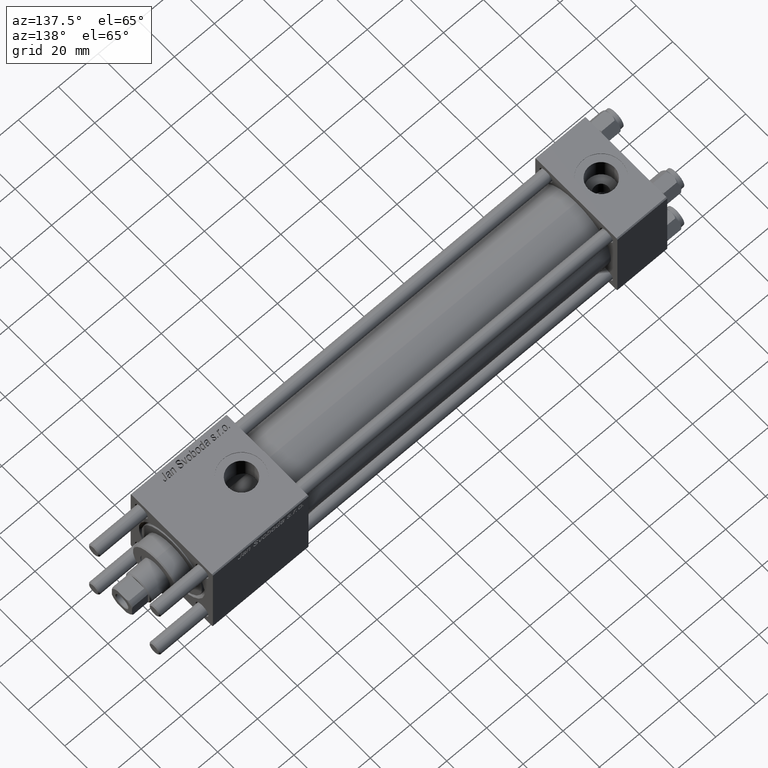
[diagram: clean part render]
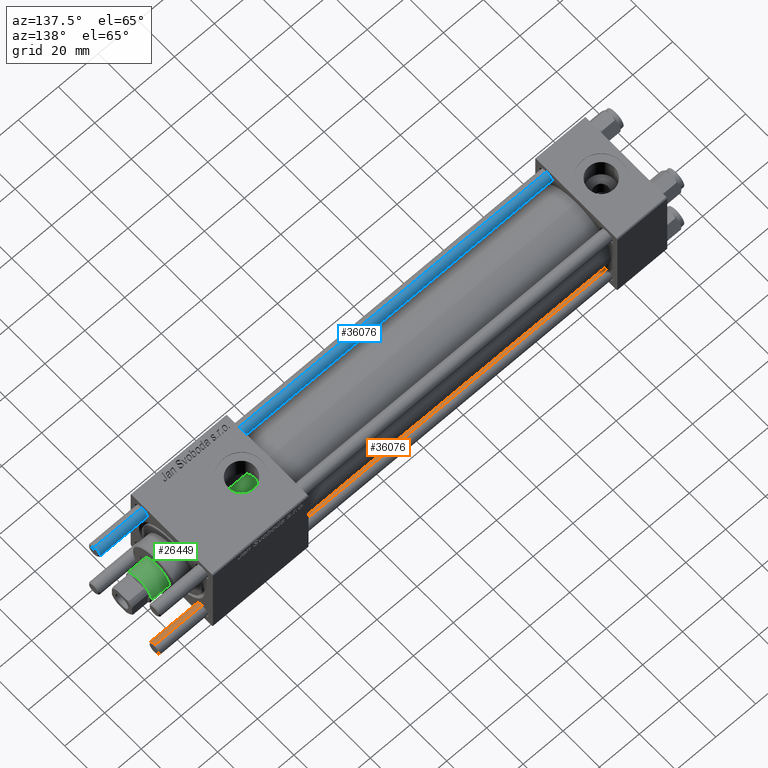
[diagram: same view with three faces highlighted in distinct colors, each labeled with its STEP entity id]
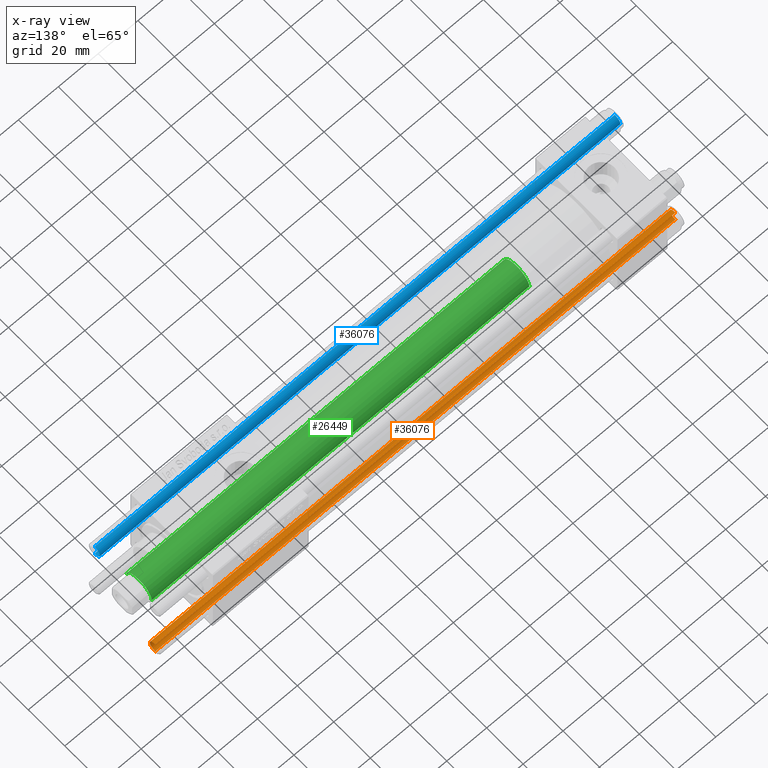
[diagram: x-ray of the same camera — body ghosted, the three highlighted faces saturated]
A machine part, auxiliary view with three faces highlighted in distinct colors.
The next image is the same camera in x-ray (body ghosted, the three faces saturated) — at least one of them is partly hidden behind the body in this view.
Their STEP definitions:

[orange] entity #36076 — the highlighted cylindrical surface (edge-blend (fillet) strip) has radius 3 mm, axis along (-1, -0, 0).
#2593 = CARTESIAN_POINT ( 'NONE',  ( 0.000000000000000000, 0.000000000000000000, 261.5000000000000568 ) ) ;
#3306 = DIRECTION ( 'NONE',  ( -1.000000000000000000, 0.000000000000000000, 0.000000000000000000 ) ) ;
#4651 = DIRECTION ( 'NONE',  ( -0.000000000000000000, -0.000000000000000000, 1.000000000000000000 ) ) ;
#9441 = AXIS2_PLACEMENT_3D ( 'NONE', #26488, #4651, #39734 ) ;
#9582 = ORIENTED_EDGE ( 'NONE', *, *, #49860, .T. ) ;
#11949 = CARTESIAN_POINT ( 'NONE',  ( 0.000000000000000000, 0.000000000000000000, 262.0000000000000000 ) ) ;
#13748 = CIRCLE ( 'NONE', #45867, 3.000000000000000444 ) ;
#14085 = EDGE_CURVE ( 'NONE', #27907, #49711, #55422, .T. ) ;
#15739 = DIRECTION ( 'NONE',  ( -0.000000000000000000, -0.000000000000000000, -1.000000000000000000 ) ) ;
#16717 = VERTEX_POINT ( 'NONE', #39714 ) ;
#17708 = ORIENTED_EDGE ( 'NONE', *, *, #34718, .F. ) ;
#19204 = CARTESIAN_POINT ( 'NONE',  ( -3.000000000000000444, 0.000000000000000000, 262.0000000000000000 ) ) ;
#20282 = CYLINDRICAL_SURFACE ( 'NONE', #23715, 3.000000000000000444 ) ;
#23715 = AXIS2_PLACEMENT_3D ( 'NONE', #11949, #50701, #3306 ) ;
#24620 = VECTOR ( 'NONE', #15739, 1000.000000000000000 ) ;
#26488 = CARTESIAN_POINT ( 'NONE',  ( 0.000000000000000000, 0.000000000000000000, 0.5000000000000004441 ) ) ;
#27907 = VERTEX_POINT ( 'NONE', #52998 ) ;
#29952 = CARTESIAN_POINT ( 'NONE',  ( 3.000000000000000444, 3.673940397442060361E-16, 0.5000000000000004441 ) ) ;
#33363 = DIRECTION ( 'NONE',  ( 0.000000000000000000, 0.000000000000000000, -1.000000000000000000 ) ) ;
#34718 = EDGE_CURVE ( 'NONE', #43150, #49711, #39211, .T. ) ;
#34890 = DIRECTION ( 'NONE',  ( -0.000000000000000000, -0.000000000000000000, -1.000000000000000000 ) ) ;
#35611 = VECTOR ( 'NONE', #34890, 1000.000000000000000 ) ;
#35723 = CARTESIAN_POINT ( 'NONE',  ( 3.000000000000000444, 3.673940397442060361E-16, 261.5000000000000568 ) ) ;
#36076 = ADVANCED_FACE ( 'NONE', ( #38382 ), #20282, .T. ) ;
#37306 = LINE ( 'NONE', #19204, #24620 ) ;
#38382 = FACE_OUTER_BOUND ( 'NONE', #53929, .T. ) ;
#38650 = ORIENTED_EDGE ( 'NONE', *, *, #44364, .T. ) ;
#39211 = LINE ( 'NONE', #56702, #35611 ) ;
#39714 = CARTESIAN_POINT ( 'NONE',  ( -3.000000000000000444, 0.000000000000000000, 261.5000000000000568 ) ) ;
#39734 = DIRECTION ( 'NONE',  ( 1.000000000000000000, 0.000000000000000000, 0.000000000000000000 ) ) ;
#41417 = DIRECTION ( 'NONE',  ( 1.000000000000000000, 0.000000000000000000, 0.000000000000000000 ) ) ;
#41480 = ORIENTED_EDGE ( 'NONE', *, *, #14085, .T. ) ;
#43150 = VERTEX_POINT ( 'NONE', #35723 ) ;
#44364 = EDGE_CURVE ( 'NONE', #16717, #27907, #37306, .T. ) ;
#45867 = AXIS2_PLACEMENT_3D ( 'NONE', #2593, #33363, #41417 ) ;
#49711 = VERTEX_POINT ( 'NONE', #29952 ) ;
#49860 = EDGE_CURVE ( 'NONE', #43150, #16717, #13748, .T. ) ;
#50701 = DIRECTION ( 'NONE',  ( -0.000000000000000000, -0.000000000000000000, -1.000000000000000000 ) ) ;
#52998 = CARTESIAN_POINT ( 'NONE',  ( -3.000000000000000444, 0.000000000000000000, 0.5000000000000004441 ) ) ;
#53929 = EDGE_LOOP ( 'NONE', ( #17708, #9582, #38650, #41480 ) ) ;
#55422 = CIRCLE ( 'NONE', #9441, 3.000000000000000444 ) ;
#56702 = CARTESIAN_POINT ( 'NONE',  ( 3.000000000000000444, 3.673940397442060361E-16, 262.0000000000000000 ) ) ;

[blue] entity #36076 — the highlighted cylindrical surface (edge-blend (fillet) strip) has radius 3 mm, axis along (-1, 0, -0).
#2593 = CARTESIAN_POINT ( 'NONE',  ( 0.000000000000000000, 0.000000000000000000, 261.5000000000000568 ) ) ;
#3306 = DIRECTION ( 'NONE',  ( -1.000000000000000000, 0.000000000000000000, 0.000000000000000000 ) ) ;
#4651 = DIRECTION ( 'NONE',  ( -0.000000000000000000, -0.000000000000000000, 1.000000000000000000 ) ) ;
#9441 = AXIS2_PLACEMENT_3D ( 'NONE', #26488, #4651, #39734 ) ;
#9582 = ORIENTED_EDGE ( 'NONE', *, *, #49860, .T. ) ;
#11949 = CARTESIAN_POINT ( 'NONE',  ( 0.000000000000000000, 0.000000000000000000, 262.0000000000000000 ) ) ;
#13748 = CIRCLE ( 'NONE', #45867, 3.000000000000000444 ) ;
#14085 = EDGE_CURVE ( 'NONE', #27907, #49711, #55422, .T. ) ;
#15739 = DIRECTION ( 'NONE',  ( -0.000000000000000000, -0.000000000000000000, -1.000000000000000000 ) ) ;
#16717 = VERTEX_POINT ( 'NONE', #39714 ) ;
#17708 = ORIENTED_EDGE ( 'NONE', *, *, #34718, .F. ) ;
#19204 = CARTESIAN_POINT ( 'NONE',  ( -3.000000000000000444, 0.000000000000000000, 262.0000000000000000 ) ) ;
#20282 = CYLINDRICAL_SURFACE ( 'NONE', #23715, 3.000000000000000444 ) ;
#23715 = AXIS2_PLACEMENT_3D ( 'NONE', #11949, #50701, #3306 ) ;
#24620 = VECTOR ( 'NONE', #15739, 1000.000000000000000 ) ;
#26488 = CARTESIAN_POINT ( 'NONE',  ( 0.000000000000000000, 0.000000000000000000, 0.5000000000000004441 ) ) ;
#27907 = VERTEX_POINT ( 'NONE', #52998 ) ;
#29952 = CARTESIAN_POINT ( 'NONE',  ( 3.000000000000000444, 3.673940397442060361E-16, 0.5000000000000004441 ) ) ;
#33363 = DIRECTION ( 'NONE',  ( 0.000000000000000000, 0.000000000000000000, -1.000000000000000000 ) ) ;
#34718 = EDGE_CURVE ( 'NONE', #43150, #49711, #39211, .T. ) ;
#34890 = DIRECTION ( 'NONE',  ( -0.000000000000000000, -0.000000000000000000, -1.000000000000000000 ) ) ;
#35611 = VECTOR ( 'NONE', #34890, 1000.000000000000000 ) ;
#35723 = CARTESIAN_POINT ( 'NONE',  ( 3.000000000000000444, 3.673940397442060361E-16, 261.5000000000000568 ) ) ;
#36076 = ADVANCED_FACE ( 'NONE', ( #38382 ), #20282, .T. ) ;
#37306 = LINE ( 'NONE', #19204, #24620 ) ;
#38382 = FACE_OUTER_BOUND ( 'NONE', #53929, .T. ) ;
#38650 = ORIENTED_EDGE ( 'NONE', *, *, #44364, .T. ) ;
#39211 = LINE ( 'NONE', #56702, #35611 ) ;
#39714 = CARTESIAN_POINT ( 'NONE',  ( -3.000000000000000444, 0.000000000000000000, 261.5000000000000568 ) ) ;
#39734 = DIRECTION ( 'NONE',  ( 1.000000000000000000, 0.000000000000000000, 0.000000000000000000 ) ) ;
#41417 = DIRECTION ( 'NONE',  ( 1.000000000000000000, 0.000000000000000000, 0.000000000000000000 ) ) ;
#41480 = ORIENTED_EDGE ( 'NONE', *, *, #14085, .T. ) ;
#43150 = VERTEX_POINT ( 'NONE', #35723 ) ;
#44364 = EDGE_CURVE ( 'NONE', #16717, #27907, #37306, .T. ) ;
#45867 = AXIS2_PLACEMENT_3D ( 'NONE', #2593, #33363, #41417 ) ;
#49711 = VERTEX_POINT ( 'NONE', #29952 ) ;
#49860 = EDGE_CURVE ( 'NONE', #43150, #16717, #13748, .T. ) ;
#50701 = DIRECTION ( 'NONE',  ( -0.000000000000000000, -0.000000000000000000, -1.000000000000000000 ) ) ;
#52998 = CARTESIAN_POINT ( 'NONE',  ( -3.000000000000000444, 0.000000000000000000, 0.5000000000000004441 ) ) ;
#53929 = EDGE_LOOP ( 'NONE', ( #17708, #9582, #38650, #41480 ) ) ;
#55422 = CIRCLE ( 'NONE', #9441, 3.000000000000000444 ) ;
#56702 = CARTESIAN_POINT ( 'NONE',  ( 3.000000000000000444, 3.673940397442060361E-16, 262.0000000000000000 ) ) ;

[green] entity #26449 — the highlighted cylindrical surface (edge-blend (fillet) strip) has radius 7 mm, axis along (-1, 0, 0).
#979 = CARTESIAN_POINT ( 'NONE',  ( 0.000000000000000000, 0.000000000000000000, 219.4999999999999716 ) ) ;
#1356 = VERTEX_POINT ( 'NONE', #28357 ) ;
#1533 = EDGE_CURVE ( 'NONE', #33140, #54054, #12544, .T. ) ;
#2409 = FACE_OUTER_BOUND ( 'NONE', #28786, .T. ) ;
#2860 = EDGE_CURVE ( 'NONE', #17892, #1356, #27253, .T. ) ;
#11054 = DIRECTION ( 'NONE',  ( 1.000000000000000000, 0.000000000000000000, 0.000000000000000000 ) ) ;
#11614 = CARTESIAN_POINT ( 'NONE',  ( 0.000000000000000000, 0.000000000000000000, 220.0000000000000000 ) ) ;
#12544 = CIRCLE ( 'NONE', #25381, 7.000000000000000000 ) ;
#15101 = EDGE_CURVE ( 'NONE', #33140, #1356, #54906, .T. ) ;
#17683 = CARTESIAN_POINT ( 'NONE',  ( -7.000000000000000000, 0.000000000000000000, 220.0000000000000000 ) ) ;
#17892 = VERTEX_POINT ( 'NONE', #52542 ) ;
#18916 = VECTOR ( 'NONE', #35788, 1000.000000000000000 ) ;
#21562 = CARTESIAN_POINT ( 'NONE',  ( 7.000000000000000000, 8.572527594031473190E-16, 220.0000000000000000 ) ) ;
#23866 = EDGE_CURVE ( 'NONE', #54054, #17892, #39552, .T. ) ;
#25053 = ORIENTED_EDGE ( 'NONE', *, *, #1533, .T. ) ;
#25105 = DIRECTION ( 'NONE',  ( -0.000000000000000000, -0.000000000000000000, -1.000000000000000000 ) ) ;
#25381 = AXIS2_PLACEMENT_3D ( 'NONE', #979, #47828, #31451 ) ;
#26449 = ADVANCED_FACE ( 'NONE', ( #2409 ), #38057, .T. ) ;
#27253 = CIRCLE ( 'NONE', #54772, 7.000000000000000000 ) ;
#27816 = VECTOR ( 'NONE', #31313, 1000.000000000000000 ) ;
#28357 = CARTESIAN_POINT ( 'NONE',  ( 7.000000000000000000, 8.572527594031473190E-16, 30.00000000000000000 ) ) ;
#28786 = EDGE_LOOP ( 'NONE', ( #44278, #25053, #38863, #34781 ) ) ;
#30033 = AXIS2_PLACEMENT_3D ( 'NONE', #11614, #25105, #55831 ) ;
#31313 = DIRECTION ( 'NONE',  ( -0.000000000000000000, -0.000000000000000000, -1.000000000000000000 ) ) ;
#31451 = DIRECTION ( 'NONE',  ( 1.000000000000000000, 0.000000000000000000, 0.000000000000000000 ) ) ;
#33140 = VERTEX_POINT ( 'NONE', #43063 ) ;
#34781 = ORIENTED_EDGE ( 'NONE', *, *, #2860, .T. ) ;
#35788 = DIRECTION ( 'NONE',  ( -0.000000000000000000, -0.000000000000000000, -1.000000000000000000 ) ) ;
#38057 = CYLINDRICAL_SURFACE ( 'NONE', #30033, 7.000000000000000000 ) ;
#38863 = ORIENTED_EDGE ( 'NONE', *, *, #23866, .T. ) ;
#39552 = LINE ( 'NONE', #17683, #18916 ) ;
#43063 = CARTESIAN_POINT ( 'NONE',  ( 7.000000000000000000, 8.572527594031473190E-16, 219.4999999999999716 ) ) ;
#44278 = ORIENTED_EDGE ( 'NONE', *, *, #15101, .F. ) ;
#46101 = CARTESIAN_POINT ( 'NONE',  ( 0.000000000000000000, 0.000000000000000000, 30.00000000000000000 ) ) ;
#47828 = DIRECTION ( 'NONE',  ( 0.000000000000000000, 0.000000000000000000, -1.000000000000000000 ) ) ;
#50387 = DIRECTION ( 'NONE',  ( 0.000000000000000000, 0.000000000000000000, 1.000000000000000000 ) ) ;
#51639 = CARTESIAN_POINT ( 'NONE',  ( -7.000000000000000000, 0.000000000000000000, 219.4999999999999716 ) ) ;
#52542 = CARTESIAN_POINT ( 'NONE',  ( -7.000000000000000000, 0.000000000000000000, 30.00000000000000000 ) ) ;
#54054 = VERTEX_POINT ( 'NONE', #51639 ) ;
#54772 = AXIS2_PLACEMENT_3D ( 'NONE', #46101, #50387, #11054 ) ;
#54906 = LINE ( 'NONE', #21562, #27816 ) ;
#55831 = DIRECTION ( 'NONE',  ( -1.000000000000000000, 0.000000000000000000, 0.000000000000000000 ) ) ;